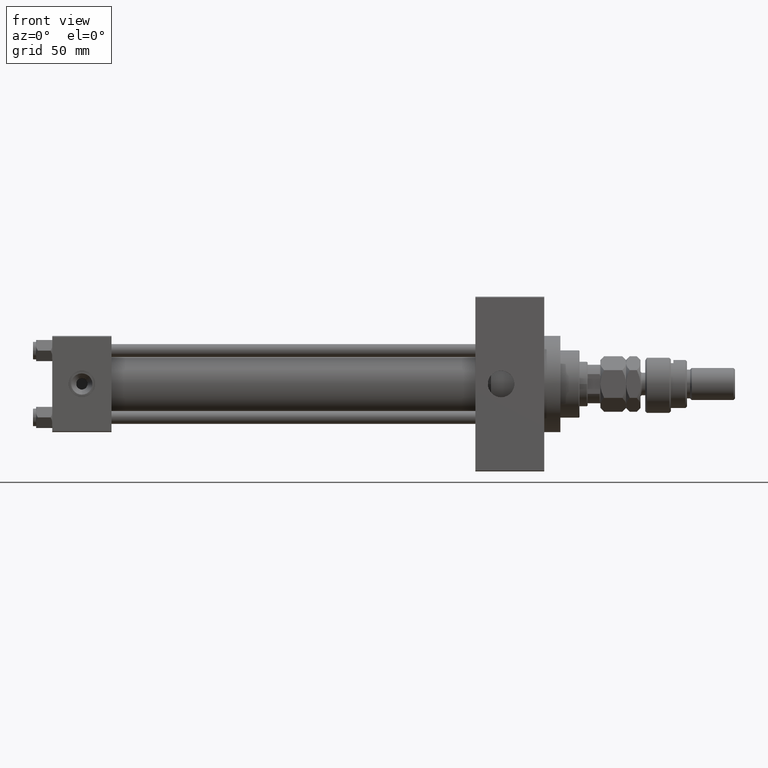
[diagram: clean part render]
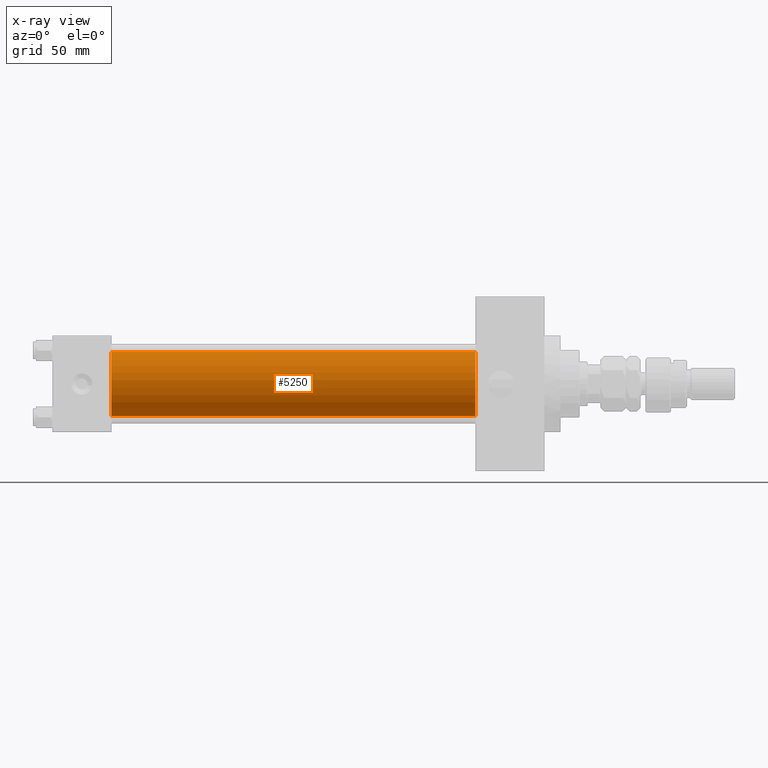
[diagram: x-ray — body ghosted, one internal face saturated and labeled with its STEP entity id]
A machine part, front view, then the same camera in x-ray: the body is ghosted and one INTERNAL B-rep face — a face not visible from any outside direction — is saturated and labeled: STEP entity #5250.
In plain terms, the highlighted cylindrical surface (edge-blend (fillet) strip) has radius 20 mm, axis along (-1, -0, -0).
Its self-contained STEP definition (entity closure, byte-faithful):
#3063 = EDGE_CURVE ( 'NONE', #11386, #45562, #35060, .T. ) ;
#5250 = ADVANCED_FACE ( 'NONE', ( #33623 ), #41012, .F. ) ;
#5421 = DIRECTION ( 'NONE',  ( 0.000000000000000000, 0.000000000000000000, 1.000000000000000000 ) ) ;
#5940 = VECTOR ( 'NONE', #6202, 1000.000000000000000 ) ;
#6202 = DIRECTION ( 'NONE',  ( -1.000000000000000000, -0.000000000000000000, -0.000000000000000000 ) ) ;
#7021 = EDGE_LOOP ( 'NONE', ( #28882, #43577, #16391, #45340 ) ) ;
#10455 = VERTEX_POINT ( 'NONE', #33895 ) ;
#11386 = VERTEX_POINT ( 'NONE', #37071 ) ;
#12309 = AXIS2_PLACEMENT_3D ( 'NONE', #50210, #33344, #21986 ) ;
#16124 = EDGE_CURVE ( 'NONE', #45562, #10455, #29937, .T. ) ;
#16391 = ORIENTED_EDGE ( 'NONE', *, *, #24801, .F. ) ;
#18038 = AXIS2_PLACEMENT_3D ( 'NONE', #42493, #22194, #46975 ) ;
#18870 = CIRCLE ( 'NONE', #18038, 20.00000000000000000 ) ;
#20512 = VECTOR ( 'NONE', #22946, 1000.000000000000000 ) ;
#21986 = DIRECTION ( 'NONE',  ( 0.000000000000000000, 0.000000000000000000, -1.000000000000000000 ) ) ;
#22194 = DIRECTION ( 'NONE',  ( 1.000000000000000000, 0.000000000000000000, 0.000000000000000000 ) ) ;
#22946 = DIRECTION ( 'NONE',  ( -1.000000000000000000, -0.000000000000000000, -0.000000000000000000 ) ) ;
#24801 = EDGE_CURVE ( 'NONE', #33628, #10455, #18870, .T. ) ;
#28882 = ORIENTED_EDGE ( 'NONE', *, *, #3063, .T. ) ;
#28897 = CARTESIAN_POINT ( 'NONE',  ( 264.0000000000000000, -2.602085213965210642E-15, 0.000000000000000000 ) ) ;
#29937 = LINE ( 'NONE', #50495, #5940 ) ;
#31389 = CARTESIAN_POINT ( 'NONE',  ( 264.0000000000000000, -2.602085213965210642E-15, 20.00000000000000000 ) ) ;
#33344 = DIRECTION ( 'NONE',  ( 1.000000000000000000, 0.000000000000000000, 0.000000000000000000 ) ) ;
#33623 = FACE_OUTER_BOUND ( 'NONE', #7021, .T. ) ;
#33628 = VERTEX_POINT ( 'NONE', #34260 ) ;
#33895 = CARTESIAN_POINT ( 'NONE',  ( 37.00000000000000000, -1.527916156705046464E-16, -20.00000000000000000 ) ) ;
#34254 = AXIS2_PLACEMENT_3D ( 'NONE', #28897, #37321, #5421 ) ;
#34260 = CARTESIAN_POINT ( 'NONE',  ( 37.00000000000000000, -2.602085213965210642E-15, 20.00000000000000000 ) ) ;
#35060 = CIRCLE ( 'NONE', #12309, 20.00000000000000000 ) ;
#37071 = CARTESIAN_POINT ( 'NONE',  ( 264.0000000000000000, -2.602085213965210642E-15, 20.00000000000000000 ) ) ;
#37321 = DIRECTION ( 'NONE',  ( -1.000000000000000000, -0.000000000000000000, -0.000000000000000000 ) ) ;
#37556 = CARTESIAN_POINT ( 'NONE',  ( 264.0000000000000000, -1.527916156705046464E-16, -20.00000000000000000 ) ) ;
#39289 = LINE ( 'NONE', #31389, #20512 ) ;
#41012 = CYLINDRICAL_SURFACE ( 'NONE', #34254, 20.00000000000000000 ) ;
#42493 = CARTESIAN_POINT ( 'NONE',  ( 37.00000000000000000, -2.602085213965210642E-15, 0.000000000000000000 ) ) ;
#43577 = ORIENTED_EDGE ( 'NONE', *, *, #16124, .T. ) ;
#45340 = ORIENTED_EDGE ( 'NONE', *, *, #45739, .F. ) ;
#45562 = VERTEX_POINT ( 'NONE', #37556 ) ;
#45739 = EDGE_CURVE ( 'NONE', #11386, #33628, #39289, .T. ) ;
#46975 = DIRECTION ( 'NONE',  ( 0.000000000000000000, 0.000000000000000000, -1.000000000000000000 ) ) ;
#50210 = CARTESIAN_POINT ( 'NONE',  ( 264.0000000000000000, -2.602085213965210642E-15, 0.000000000000000000 ) ) ;
#50495 = CARTESIAN_POINT ( 'NONE',  ( 264.0000000000000000, -1.527916156705046464E-16, -20.00000000000000000 ) ) ;